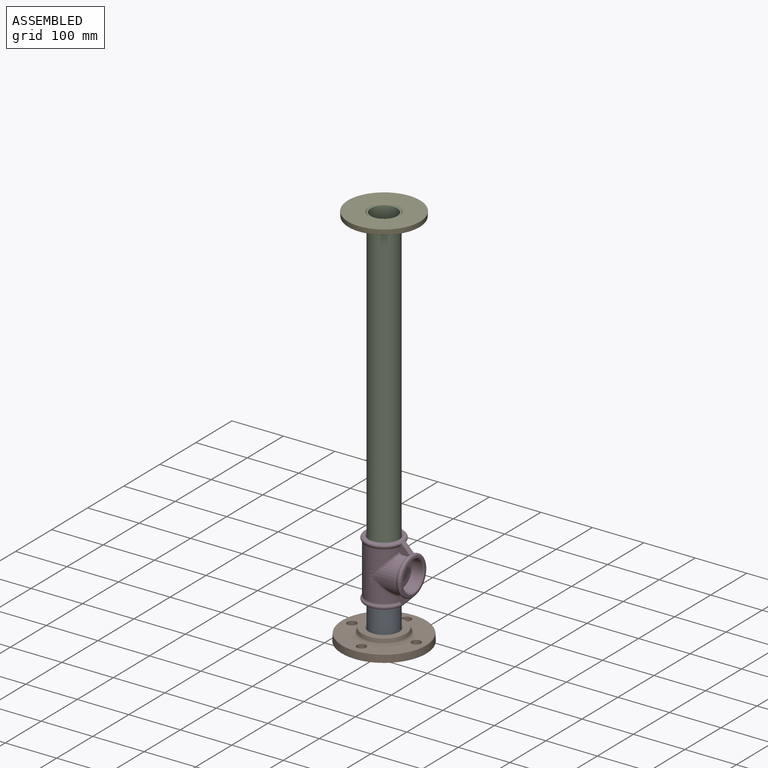
[diagram: assembled view]
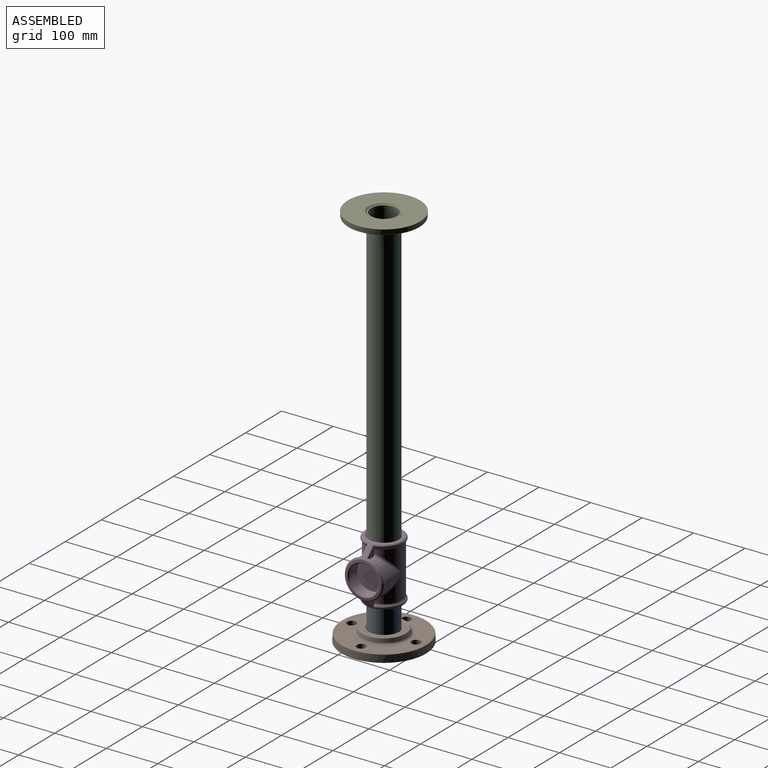
[diagram: assembled view, second angle]
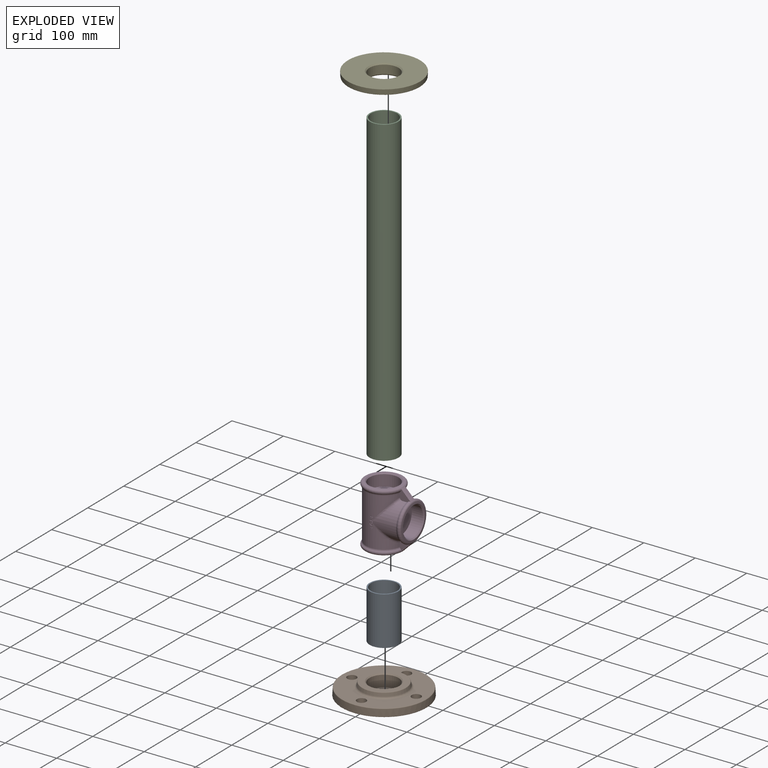
[diagram: exploded view]
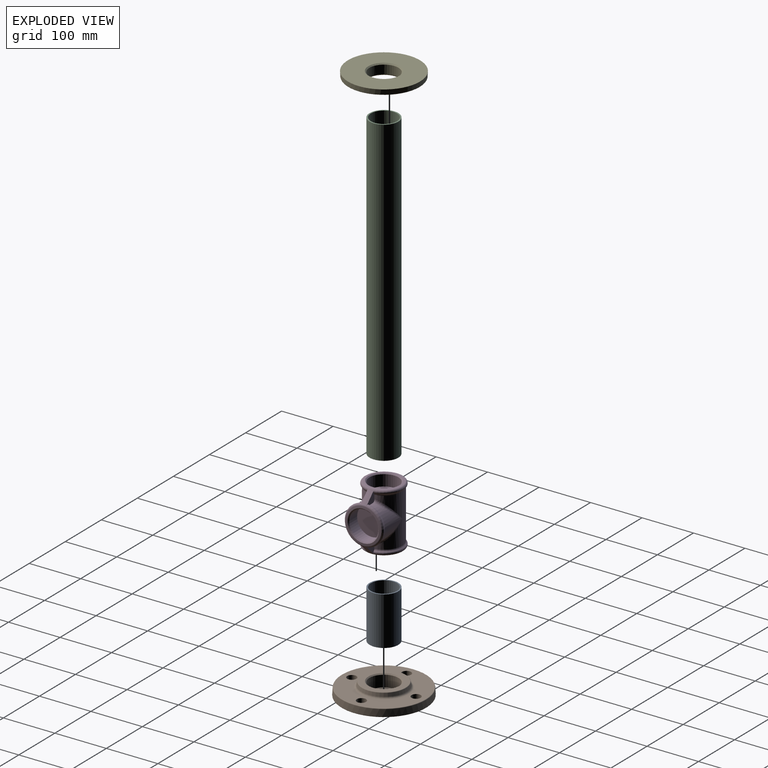
[diagram: exploded view, second angle]
ASSEMBLY  parts=5 mates=4
PART A: 4 faces, bbox 56x56x94 mm
  f0: cylinder r=25.5mm len=94mm, axis (0,0,-1), area 15060.8mm2, adj f2,f3
  f1: cylinder r=28mm len=94mm, axis (0,0,-1), area 16537.3mm2, adj f2,f3
  f2: plane 56x56mm, normal (0,0,1), area 420.2mm2, adj f0,f1
  f3: plane 56x56mm, normal (0,0,-1), area 420.2mm2, adj f0,f1
PART B: 19 faces, bbox 178.5x178.5x28.1 mm
  f0: torus R=81.45mm, axis (0,0,-1), area 837.2mm2, adj f13,f14
  f1: torus R=47.91mm, axis (0,0,-1), area 1559.7mm2, adj f4,f15
  f2: cone r=51.11mm half-angle=3deg, axis (0,0,1), area 387.2mm2, adj f3,f16
  f3: torus R=53.11mm, axis (0,0,-1), area 989.6mm2, adj f2,f14
  f4: cone r=43.26mm half-angle=12deg, axis (0,0,-1), area 1709.5mm2, adj f1,f5
  f5: torus R=41.72mm, axis (0,0,-1), area 361.8mm2, adj f4,f18
  f6: cylinder r=28.33mm len=56.66mm, axis (0,0,1), area 3920.8mm2, adj f7,f17
  f7: cone r=29.31mm half-angle=45deg, axis (0,0,1), area 513.7mm2, adj f6,f18
  f8: cylinder r=9mm len=18mm, axis (0,0,1), area 842.6mm2, adj f14,f15
  f9: cylinder r=9mm len=18mm, axis (0,0,1), area 842.6mm2, adj f14,f15
  f10: cylinder r=9mm len=18mm, axis (0,0,1), area 842.6mm2, adj f14,f15
  f11: cylinder r=9mm len=18mm, axis (0,0,1), area 842.6mm2, adj f14,f15
  f12: torus R=80.77mm, axis (0,0,-1), area 776.6mm2, adj f13,f15
  f13: cone r=82.11mm half-angle=3deg, axis (0,0,-1), area 6664.1mm2, adj f0,f12
  f14: plane 162.89x162.89mm, normal (0,0,-1), area 10959.5mm2, adj f0,f3,f8,f9,f10,f11
  f15: plane 161.54x161.54mm, normal (0,0,1), area 12265.4mm2, adj f1,f8,f9,f10,f11,f12
  f16: plane 102.11x102.11mm, normal (0,0,-1), area 8188.1mm2, adj f2
  f17: plane 56.66x56.66mm, normal (0,0,1), area 2521.1mm2, adj f6
  f18: plane 83.43x83.43mm, normal (0,0,1), area 2583mm2, adj f5,f7
PART C: 4 faces, bbox 56x56x590 mm
  f0: cylinder r=25.5mm len=590mm, axis (0,0,-1), area 94530.5mm2, adj f2,f3
  f1: cylinder r=28mm len=590mm, axis (0,0,-1), area 103798.2mm2, adj f2,f3
  f2: plane 56x56mm, normal (0,0,1), area 420.2mm2, adj f0,f1
  f3: plane 56x56mm, normal (0,0,-1), area 420.2mm2, adj f0,f1
PART D: 102 faces, bbox 100.7x86.4x116.1 mm
  f0: torus R=33.8mm, axis (0,0,1), area 2053.3mm2, adj f4,f7,f8,f81,f82,f83,f84,f86
  f1: torus R=33.8mm, axis (-1,0,0), area 2004.7mm2, adj f5,f9,f10,f73,f74,f75,f76,f77
  f2: torus R=33.8mm, axis (0,0,1), area 2053.3mm2, adj f3,f6,f12,f71,f72,f73,f74,f75
  f3: cone r=30.77mm half-angle=85deg, axis (0,0,1), area 782.2mm2, adj f2,f16
  f4: cone r=30.77mm half-angle=85deg, axis (0,0,-1), area 782.2mm2, adj f0,f18
  f5: cone r=30.77mm half-angle=85deg, axis (-1,0,0), area 782.2mm2, adj f1,f14
  f6: torus R=39.6mm, axis (0,0,1), area 370.8mm2, adj f2,f11,f78,f100
  f7: torus R=39.6mm, axis (0,0,1), area 370.8mm2, adj f0,f11,f81,f90
  f8: torus R=39.6mm, axis (0,0,1), area 370.8mm2, adj f0,f11,f88,f94
  f9: torus R=39.6mm, axis (-1,0,0), area 370.8mm2, adj f1,f65,f78,f88
  f10: torus R=39.6mm, axis (-1,0,0), area 370.8mm2, adj f1,f74,f80,f81
  f11: cylinder r=35.1mm len=94.42mm, axis (0,0,-1), area 14346.3mm2, adj f6,f7,f8,f12,f19,f20,f21,f22
  f12: torus R=39.6mm, axis (0,0,1), area 370.8mm2, adj f2,f11,f74,f96
  f13: cylinder r=28.33mm len=56.66mm, axis (1,0,0), area 3875.6mm2, adj f14,f70
  f14: cone r=29.44mm half-angle=45deg, axis (1,0,0), area 513.7mm2, adj f5,f13
  f15: cylinder r=28.33mm len=56.66mm, axis (0,0,-1), area 3875.6mm2, adj f16,f69
  f16: cone r=29.44mm half-angle=45deg, axis (0,0,-1), area 513.7mm2, adj f3,f15
  f17: cylinder r=28.33mm len=56.66mm, axis (0,0,1), area 3875.6mm2, adj f18,f68
  f18: cone r=29.44mm half-angle=45deg, axis (0,0,1), area 513.7mm2, adj f4,f17
  f19: cylinder r=2.18mm len=4.37mm, axis (0,1,0), area 11.5mm2, adj f11,f35,f37,f38
  f20: cylinder r=3.6mm len=7.2mm, axis (0,1,0), area 20mm2, adj f11,f34,f37,f38,f63,f64,f65
  f21: plane 1.92x1mm, normal (0,0,1), area 1.9mm2, adj f11,f22,f32,f33
  f22: plane 1.92x1mm, normal (-1,0,0), area 1.9mm2, adj f11,f21,f23,f33
  f23: plane 1.25x1mm, normal (0,0,1), area 1.2mm2, adj f11,f22,f24,f33
  f24: plane 1.92x0.99mm, normal (1,0,0), area 1.9mm2, adj f11,f23,f25,f33
  f25: plane 1.92x0.99mm, normal (0,0,1), area 1.8mm2, adj f11,f24,f26,f33
  f26: plane 1.25x0.89mm, normal (1,0,0), area 1.1mm2, adj f11,f25,f27,f33
  f27: plane 1.92x0.99mm, normal (0,0,-1), area 1.8mm2, adj f11,f26,f28,f33
  f28: plane 1.92x0.99mm, normal (1,0,0), area 1.9mm2, adj f11,f27,f29,f33
  f29: plane 1.25x1mm, normal (0,0,-1), area 1.2mm2, adj f11,f28,f30,f33
  f30: plane 1.92x1mm, normal (-1,0,0), area 1.9mm2, adj f11,f29,f31,f33
  f31: plane 1.92x1mm, normal (0,0,-1), area 1.9mm2, adj f11,f30,f32,f33
  f32: plane 1.25x0.93mm, normal (-1,0,0), area 1.2mm2, adj f11,f21,f31,f33
  f33: plane 5.09x5.09mm, normal (0,-1,0), area 11.1mm2, adj f21,f22,f23,f24,f25,f26,f27,f28
  f34: plane 3.58x0.99mm, normal (1,0,0), area 3.6mm2, adj f11,f20,f36,f38
  f35: plane 1.96x0.99mm, normal (-1,0,0), area 1.9mm2, adj f11,f19,f36,f38
  f36: plane 1.32x1mm, normal (0,0,1), area 1.3mm2, adj f11,f34,f35,f38
  f37: plane 1.23x0.97mm, normal (-0.87,0,-0.5), area 1.4mm2, adj f11,f19,f20,f38
  f38: plane 7.2x7.2mm, normal (0,-1,0), area 26.9mm2, adj f19,f20,f34,f35,f36,f37
  f39: plane 2.52x1mm, normal (-1,0,0), area 2.5mm2, adj f11,f40,f46,f49
  f40: plane 2.9x1.02mm, normal (0,0,-1), area 2.8mm2, adj f11,f39,f41,f49,f65,f67
  f41: plane 1.56x1mm, normal (-1,0,0), area 1.5mm2, adj f40,f42,f49,f65
  f42: plane 6.89x1mm, normal (0,0,1), area 6.7mm2, adj f11,f41,f47,f49,f65,f66
  f43: plane 2.52x0.92mm, normal (-1,0,0), area 2.3mm2, adj f11,f44,f48,f49
  f44: plane 1.37x0.99mm, normal (0,0,-1), area 1.3mm2, adj f11,f43,f45,f49
  f45: plane 2.52x0.99mm, normal (1,0,0), area 2.5mm2, adj f11,f44,f46,f49
  f46: plane 1.32x1mm, normal (0,0,-1), area 1.3mm2, adj f11,f39,f45,f49
  f47: plane 4.08x0.81mm, normal (1,0,0), area 3.3mm2, adj f11,f42,f48,f49
  f48: plane 1.32x0.92mm, normal (0,0,-1), area 1.1mm2, adj f11,f43,f47,f49
  f49: plane 6.89x4.08mm, normal (0,-1,0), area 17.4mm2, adj f39,f40,f41,f42,f43,f44,f45,f46
  f50: plane 1.25x1mm, normal (0,0,1), area 1.2mm2, adj f11,f51,f61,f62
  f51: plane 1.92x0.99mm, normal (1,0,0), area 1.9mm2, adj f11,f50,f52,f62
  f52: plane 1.92x0.99mm, normal (0,0,1), area 1.8mm2, adj f11,f51,f53,f62
  f53: plane 1.25x0.89mm, normal (1,0,0), area 1.1mm2, adj f11,f52,f54,f62
  f54: plane 1.92x0.99mm, normal (0,0,-1), area 1.8mm2, adj f11,f53,f55,f62
  f55: plane 1.92x0.99mm, normal (1,0,0), area 1.9mm2, adj f11,f54,f56,f62
  f56: plane 1.25x1mm, normal (0,0,-1), area 1.2mm2, adj f11,f55,f57,f62
  f57: plane 1.92x1mm, normal (-1,0,0), area 1.9mm2, adj f11,f56,f58,f62
  f58: plane 1.92x1mm, normal (0,0,-1), area 1.9mm2, adj f11,f57,f59,f62
  f59: plane 1.25x0.93mm, normal (-1,0,0), area 1.2mm2, adj f11,f58,f60,f62
  f60: plane 1.92x1mm, normal (0,0,1), area 1.9mm2, adj f11,f59,f61,f62
  f61: plane 1.92x1mm, normal (-1,0,0), area 1.9mm2, adj f11,f50,f60,f62
  f62: plane 5.09x5.09mm, normal (0,-1,0), area 11.1mm2, adj f50,f51,f52,f53,f54,f55,f56,f57
  f63: bspline ~37.08x37.08mm, area 263.3mm2, adj f11,f20,f65,f78
  f64: bspline ~1.08x0.95mm, area 0.1mm2, adj f11,f20,f65
  f65: cylinder r=35.1mm len=69.28mm, axis (1,0,0), area 2304.4mm2, adj f9,f20,f40,f41,f42,f63,f64,f66
  f66: bspline ~0.04x0.04mm, area 0mm2, adj f11,f42,f65
  f67: bspline ~38.18x38.18mm, area 262.6mm2, adj f11,f40,f65,f88
  f68: plane 56.66x56.66mm, normal (0,0,1), area 2521.1mm2, adj f17
  f69: plane 56.66x56.66mm, normal (0,0,-1), area 2521.1mm2, adj f15
  f70: plane 56.66x56.66mm, normal (1,0,0), area 2521.1mm2, adj f13
  f71: plane 0.25x0.03mm, normal (0,-0.05,-1), area 0mm2, adj f2,f73,f78
  f72: plane 0.25x0.03mm, normal (0,0.05,-1), area 0mm2, adj f2,f74,f75
  f73: plane 19.06x19.06mm, normal (0.71,-0.05,-0.71), area 148mm2, adj f1,f2,f71,f75,f76,f78
  f74: plane 21.72x21.72mm, normal (0,1,0), area 229.4mm2, adj f1,f2,f10,f11,f12,f72,f75,f77
  f75: plane 19.06x19.06mm, normal (0.71,0.05,-0.71), area 148mm2, adj f1,f2,f72,f73,f74,f77
  f76: plane 0.25x0.03mm, normal (1,-0.05,0), area 0mm2, adj f1,f73,f78
  f77: plane 0.25x0.03mm, normal (1,0.05,0), area 0mm2, adj f1,f74,f75
  f78: plane 21.72x21.72mm, normal (0,-1,0), area 229.4mm2, adj f1,f2,f6,f9,f11,f63,f65,f71
  f79: bspline ~39.58x39.58mm, area 163.2mm2, adj f11,f74,f80
  f80: cylinder r=35.1mm len=69.28mm, axis (1,0,0), area 2308.3mm2, adj f10,f74,f79,f81,f101
  f81: plane 21.72x21.72mm, normal (0,1,0), area 229.4mm2, adj f0,f1,f7,f10,f11,f80,f82,f84
  f82: plane 0.25x0.03mm, normal (0,0.05,1), area 0mm2, adj f0,f81,f84
  f83: plane 0.25x0.03mm, normal (0,-0.05,1), area 0mm2, adj f0,f86,f88
  f84: plane 19.06x19.06mm, normal (0.71,0.05,0.71), area 148mm2, adj f0,f1,f81,f82,f85,f86
  f85: plane 0.25x0.03mm, normal (1,0.05,0), area 0mm2, adj f1,f81,f84
  f86: plane 19.06x19.06mm, normal (0.71,-0.05,0.71), area 148mm2, adj f0,f1,f83,f84,f87,f88
  f87: plane 0.25x0.03mm, normal (1,-0.05,0), area 0mm2, adj f1,f86,f88
  f88: plane 21.17x21.17mm, normal (0,-1,0), area 229.4mm2, adj f0,f1,f8,f9,f11,f65,f67,f83
  f89: plane 29.75x5.65mm, normal (-1,0.05,0), area 166.6mm2, adj f0,f90,f91,f92
  f90: plane 32.09x2.47mm, normal (0,1,0), area 68.8mm2, adj f0,f7,f11,f89,f91
  f91: plane 5.65x2.66mm, normal (-0.71,0.05,-0.71), area 17.6mm2, adj f11,f89,f90,f93
  f92: plane 29.75x5.65mm, normal (-1,-0.05,0), area 166.5mm2, adj f0,f89,f93,f94
  f93: plane 5.65x2.66mm, normal (-0.71,-0.05,-0.71), area 17.6mm2, adj f11,f91,f92,f94
  f94: plane 32.09x2.47mm, normal (0,-1,0), area 68.8mm2, adj f0,f8,f11,f92,f93
  f95: plane 5.65x2.66mm, normal (-0.71,0.05,0.71), area 17.6mm2, adj f11,f96,f97,f99
  f96: plane 32.09x2.47mm, normal (0,1,0), area 68.8mm2, adj f2,f11,f12,f95,f97
  f97: plane 29.75x5.65mm, normal (-1,0.05,0), area 166.5mm2, adj f2,f95,f96,f98
  f98: plane 29.75x5.65mm, normal (-1,-0.05,0), area 166.5mm2, adj f2,f97,f99,f100
  f99: plane 5.65x2.66mm, normal (-0.71,-0.05,0.71), area 17.6mm2, adj f11,f95,f98,f100
  f100: plane 32.09x2.47mm, normal (0,-1,0), area 68.8mm2, adj f2,f6,f11,f98,f99
  f101: bspline ~39.58x39.58mm, area 163.2mm2, adj f11,f80,f81
PART E: 55 faces, bbox 150.5x150.5x21 mm
  f0: cone r=69.76mm half-angle=3deg, axis (0,0,-1), area 3973.4mm2, adj f1,f54
  f1: torus R=68.53mm, axis (0,0,-1), area 659.7mm2, adj f0,f52
  f2: cone r=28mm half-angle=45deg, axis (0,0,-1), area 567.7mm2, adj f6,f54
  f3: torus R=33.08mm, axis (0,0,-1), area 314.1mm2, adj f4,f53
  f4: cone r=34.48mm half-angle=5deg, axis (0,0,-1), area 1394.8mm2, adj f3,f5
  f5: torus R=38.63mm, axis (0,0,-1), area 1348.5mm2, adj f4,f52
  f6: cylinder r=28.33mm len=56.66mm, axis (0,0,1), area 3000.2mm2, adj f2,f7
  f7: cone r=29.31mm half-angle=45deg, axis (0,0,1), area 513.7mm2, adj f6,f53
  f8: cylinder r=2.18mm len=4.37mm, axis (0,0,-1), area 11.6mm2, adj f24,f25,f27,f52
  f9: cylinder r=3.6mm len=7.2mm, axis (0,0,-1), area 21.1mm2, adj f23,f24,f27,f52
  f10: plane 1.92x1mm, normal (1,0,0), area 1.9mm2, adj f11,f21,f22,f52
  f11: plane 1.92x1mm, normal (0,1,0), area 1.9mm2, adj f10,f12,f22,f52
  f12: plane 1.25x1mm, normal (1,0,0), area 1.2mm2, adj f11,f13,f22,f52
  f13: plane 1.92x1mm, normal (0,-1,0), area 1.9mm2, adj f12,f14,f22,f52
  f14: plane 1.92x1mm, normal (1,0,0), area 1.9mm2, adj f13,f15,f22,f52
  f15: plane 1.25x1mm, normal (0,-1,0), area 1.2mm2, adj f14,f16,f22,f52
  f16: plane 1.92x1mm, normal (-1,0,0), area 1.9mm2, adj f15,f17,f22,f52
  f17: plane 1.92x1mm, normal (0,-1,0), area 1.9mm2, adj f16,f18,f22,f52
  f18: plane 1.25x1mm, normal (-1,0,0), area 1.2mm2, adj f17,f19,f22,f52
  f19: plane 1.92x1mm, normal (0,1,0), area 1.9mm2, adj f18,f20,f22,f52
  f20: plane 1.92x1mm, normal (-1,0,0), area 1.9mm2, adj f19,f21,f22,f52
  f21: plane 1.25x1mm, normal (0,1,0), area 1.2mm2, adj f10,f20,f22,f52
  f22: plane 5.09x5.09mm, normal (0,0,1), area 11.1mm2, adj f10,f11,f12,f13,f14,f15,f16,f17
  f23: plane 3.58x1mm, normal (0,-1,0), area 3.6mm2, adj f9,f26,f27,f52
  f24: plane 1.23x1mm, normal (-0.5,0.87,0), area 1.4mm2, adj f8,f9,f27,f52
  f25: plane 1.96x1mm, normal (0,1,0), area 2mm2, adj f8,f26,f27,f52
  f26: plane 1.32x1mm, normal (1,0,0), area 1.3mm2, adj f23,f25,f27,f52
  f27: plane 7.2x7.2mm, normal (0,0,1), area 26.9mm2, adj f8,f9,f23,f24,f25,f26
  f28: plane 2.88x1mm, normal (-1,0,0), area 2.9mm2, adj f29,f37,f38,f52
  f29: plane 1.56x1mm, normal (0,1,0), area 1.6mm2, adj f28,f30,f38,f52
  f30: plane 6.89x1mm, normal (1,0,0), area 6.9mm2, adj f29,f31,f38,f52
  f31: plane 4.08x1mm, normal (0,-1,0), area 4.1mm2, adj f30,f32,f38,f52
  f32: plane 1.32x1mm, normal (-1,0,0), area 1.3mm2, adj f31,f33,f38,f52
  f33: plane 2.52x1mm, normal (0,1,0), area 2.5mm2, adj f32,f34,f38,f52
  f34: plane 1.37x1mm, normal (-1,0,0), area 1.4mm2, adj f33,f35,f38,f52
  f35: plane 2.52x1mm, normal (0,-1,0), area 2.5mm2, adj f34,f36,f38,f52
  f36: plane 1.32x1mm, normal (-1,0,0), area 1.3mm2, adj f35,f37,f38,f52
  f37: plane 2.52x1mm, normal (0,1,0), area 2.5mm2, adj f28,f36,f38,f52
  f38: plane 6.89x4.08mm, normal (0,0,1), area 17.4mm2, adj f28,f29,f30,f31,f32,f33,f34,f35
  f39: plane 1.25x1mm, normal (1,0,0), area 1.2mm2, adj f40,f50,f51,f52
  f40: plane 1.92x1mm, normal (0,-1,0), area 1.9mm2, adj f39,f41,f51,f52
  f41: plane 1.92x1mm, normal (1,0,0), area 1.9mm2, adj f40,f42,f51,f52
  f42: plane 1.25x1mm, normal (0,-1,0), area 1.2mm2, adj f41,f43,f51,f52
  f43: plane 1.92x1mm, normal (-1,0,0), area 1.9mm2, adj f42,f44,f51,f52
  f44: plane 1.92x1mm, normal (0,-1,0), area 1.9mm2, adj f43,f45,f51,f52
  f45: plane 1.25x1mm, normal (-1,0,0), area 1.2mm2, adj f44,f46,f51,f52
  f46: plane 1.92x1mm, normal (0,1,0), area 1.9mm2, adj f45,f47,f51,f52
  f47: plane 1.92x1mm, normal (-1,0,0), area 1.9mm2, adj f46,f48,f51,f52
  f48: plane 1.25x1mm, normal (0,1,0), area 1.2mm2, adj f47,f49,f51,f52
  f49: plane 1.92x1mm, normal (1,0,0), area 1.9mm2, adj f48,f50,f51,f52
  f50: plane 1.92x1mm, normal (0,1,0), area 1.9mm2, adj f39,f49,f51,f52
  f51: plane 5.09x5.09mm, normal (0,0,1), area 11.1mm2, adj f39,f40,f41,f42,f43,f44,f45,f46
  f52: plane 137.05x137.05mm, normal (0,0,1), area 9998.6mm2, adj f1,f5,f8,f9,f10,f11,f12,f13
  f53: plane 66.17x66.17mm, normal (0,0,1), area 554.3mm2, adj f3,f7
  f54: plane 140x140mm, normal (0,0,-1), area 12471.3mm2, adj f0,f2
PLACE A t=(-90.38,65.9,-25.94)mm
PLACE B t=(-90.38,65.9,-31.04)mm
PLACE C t=(-90.38,65.9,136.06)mm
PLACE D t=(-90.38,65.9,102.06)mm
PLACE E rot(axis=(0,1,0),180deg) t=(-90.38,65.9,728.23)mm
MATE fastened B.f0 <-> A.f0  axis (0,0,1) through (-90.38,65.9,-25.94)mm
MATE fastened C.f0 <-> D.f0  axis (0,0,-1) through (-90.38,65.9,136.06)mm
MATE fastened A.f0 <-> D.f0  axis (0,0,-1) through (-90.38,65.9,68.06)mm
MATE fastened E.f0 <-> C.f0  axis (0,0,-1) through (-90.38,65.9,726.06)mm
